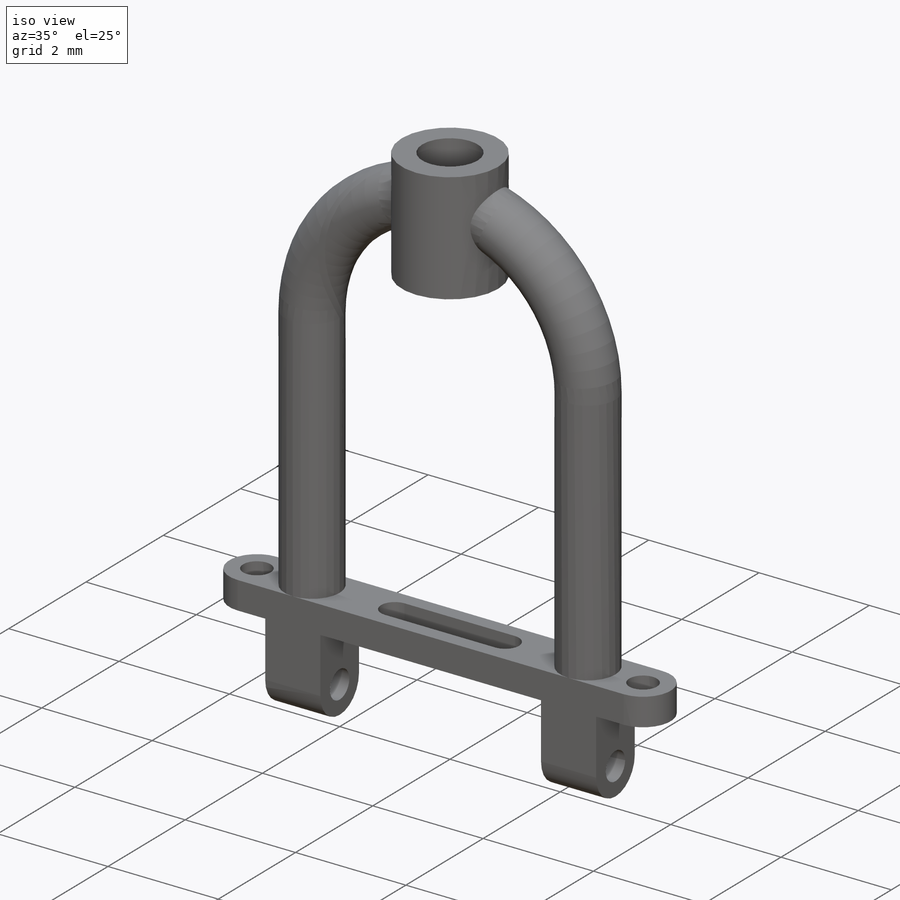
[diagram: iso view]
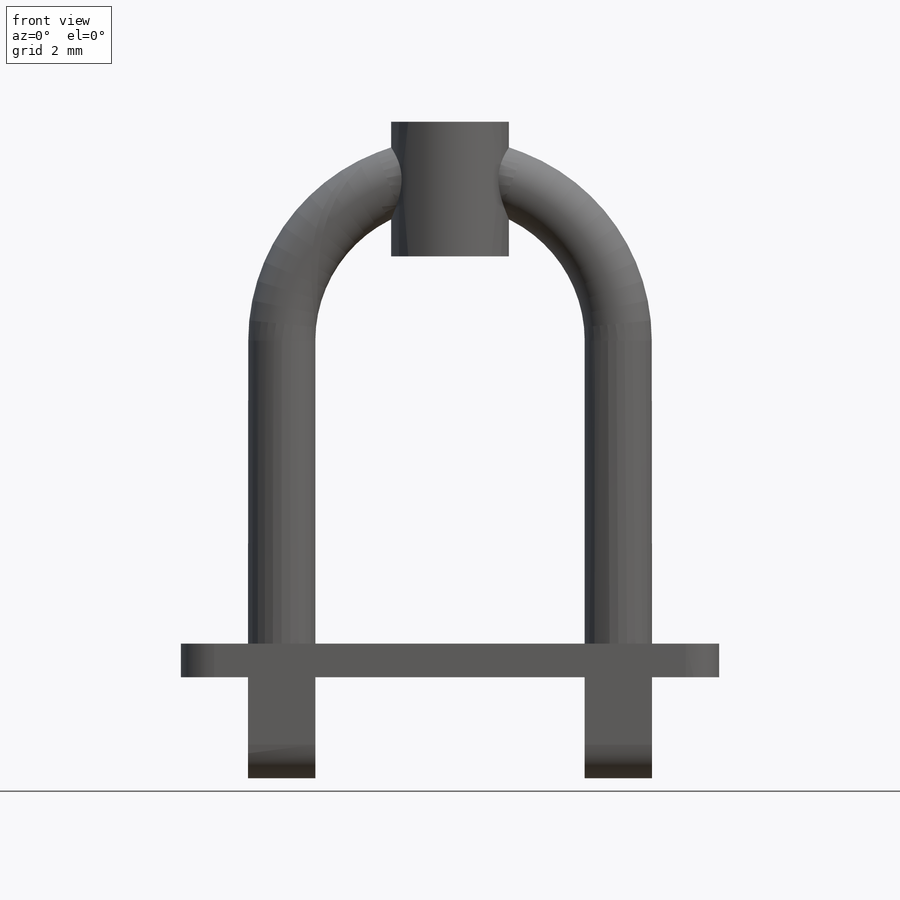
[diagram: front view]
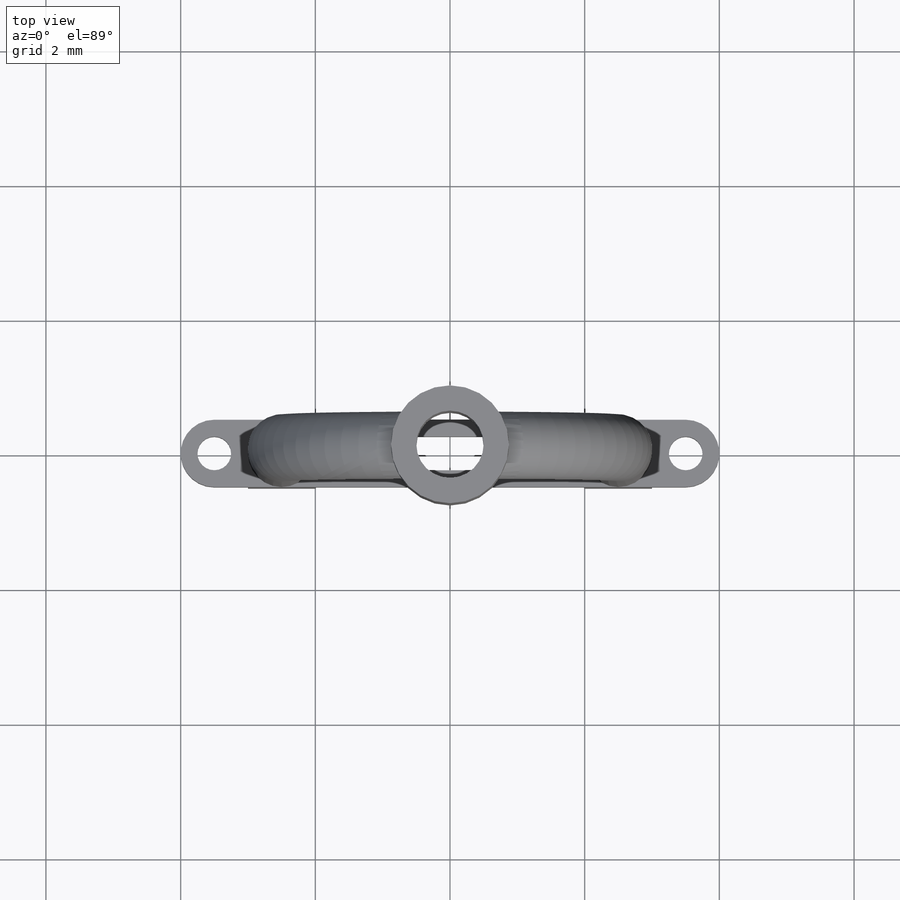
[diagram: top view]
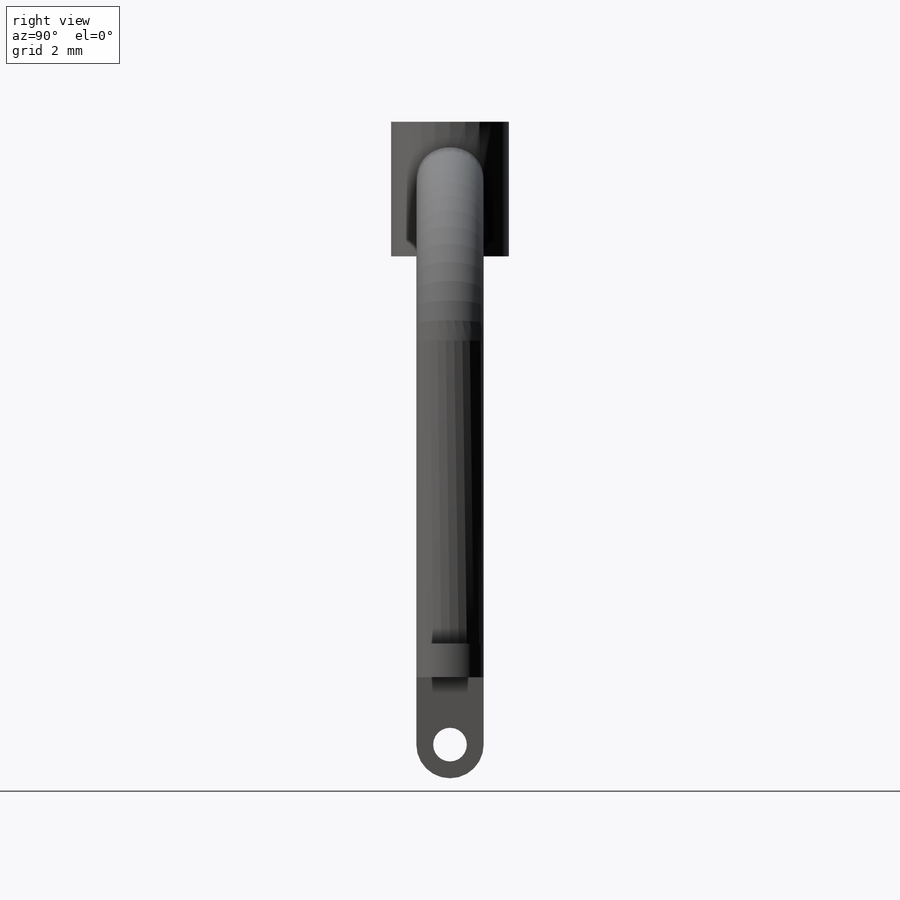
[diagram: right view]
SOLIDWORKS PART (.sldprt)
format: sldprt  version: not decoded by parser v0  size: 222,720 bytes
history: native  units: mm
features: plane x6, sketch x6, extrude x3, material x1, sweep x1, mirror x1, cut_extrude x1 (+9 scaffold rows collapsed)
feature tree (28):
  scaffold x9  (default folders/planes/origin — collapsed)
  material  "Material <não especificado>"
  plane  "Plano frontal"
  plane  "Plano superior"
  plane  "Plano direito"
  sketch  "Esboço1"  dims[c1.D3=~0.256957mm c1.D1=3.5mm c1.D2=0.5mm c2.D3=0.5mm c2.D4=2.0mm]
  extrude  "Ressalto-extrusão1"  Depth=0.5mm
  sketch  "Esboço2"  dims[D1=1.5mm]
  sketch  "Esboço3"  dims[D1=4.5mm D2=2.5mm]
  sweep  "Varredura1"
  plane  "Plano1"
  sketch  "Esboço5"  dims[D2=~0.433556mm D1=1.0mm]
  extrude  "Ressalto-extrusão2"  Depth=1mm
  mirror  "Espelhar1"
  plane  "Plano2"  Offset=6mm
  sketch  "Esboço6"  dims[D1=~3.402963mm]
  extrude  "Ressalto-extrusão3"  Depth=2mm
  plane  "Plano4"  Offset=2mm
  sketch  "Esboço7"  dims[D1=~0.554547mm]
  cut_extrude  "Corte-extrusão1"  Depth=2mm
decode coverage: 10 of 12 modeling features carry decoded parameters
note: ~ marks probable driven/reference dimensions
note: suppression state not decoded; provenance and decode notes live in map.json
